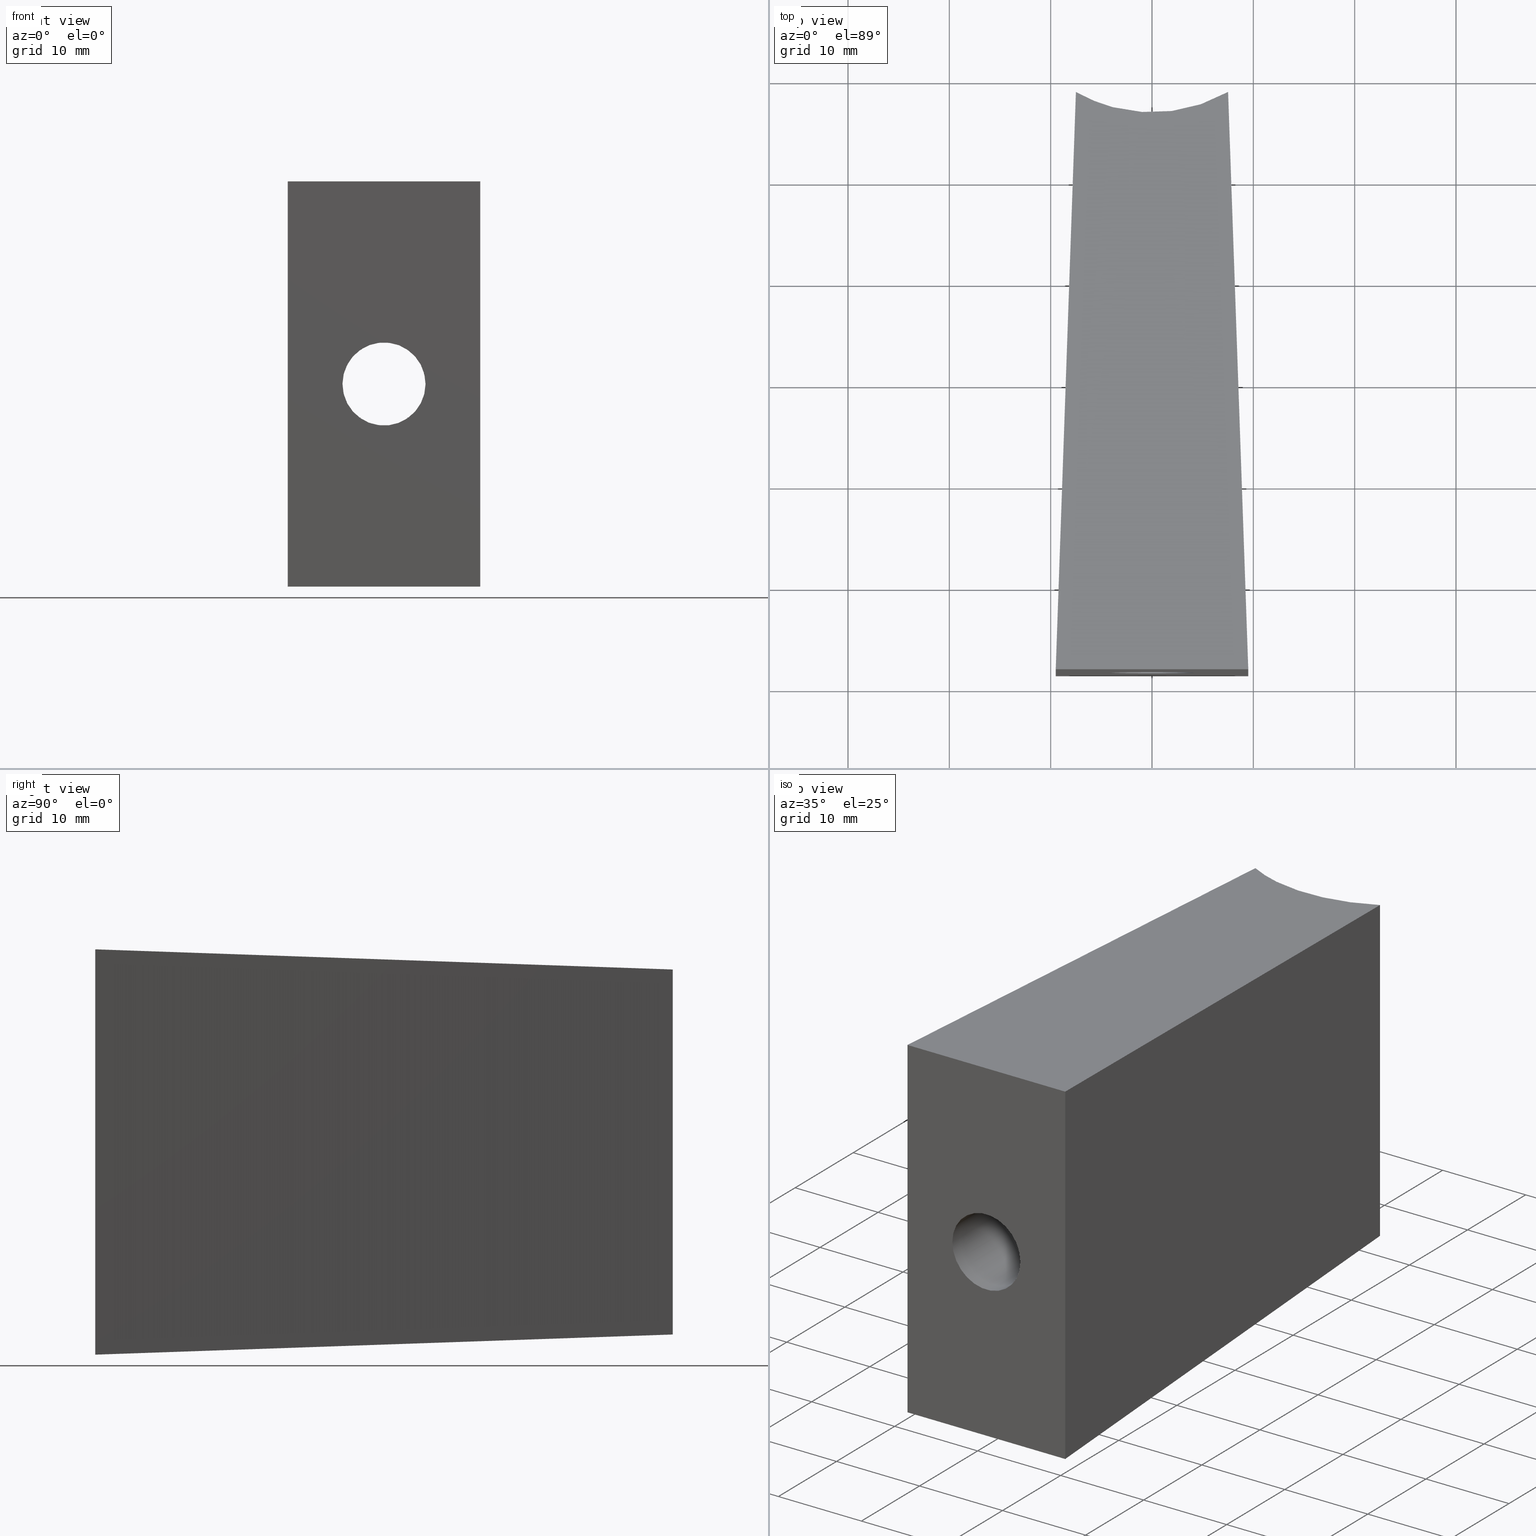
[diagram: canonical four-view strip — front | top / right | iso, engineering-drawing reading convention]
A machine part, canonical four-view strip (front | top / right | iso — engineering-drawing reading convention). The complete STEP part file that produces these views, byte-faithful:
ISO-10303-21;
HEADER;
/* Generated by software containing ST-Developer
 * from STEP Tools, Inc. (www.steptools.com) 
 */

FILE_DESCRIPTION(
/* description */ ('SUPPORTO VERTIC. MANIGLIA NERO H=57'),
/* implementation_level */ '2;1');

FILE_NAME(
/* name */ 
'Q:\\Catalogo\\2_Accessori Dierre\\Per Download Web\\CATALOGO ACCESSOR
I PER RIPARI\\PAGINA 64\\CMNAA0000003.stp',
/* time_stamp */ '2018-01-31T14:21:33+01:00',
/* author */ ('fzagni'),
/* organization */ (''),
/* preprocessor_version */ 'ST-DEVELOPER v16.1',
/* originating_system */ 'Autodesk Inventor 2016',
/* authorisation */ '');

FILE_SCHEMA (('AUTOMOTIVE_DESIGN { 1 0 10303 214 3 1 1 }'));
ENDSEC;

DATA;
#10=MECHANICAL_DESIGN_GEOMETRIC_PRESENTATION_REPRESENTATION('',(#13),#303);
#11=SHAPE_REPRESENTATION_RELATIONSHIP('SRR','None',#312,#12);
#12=ADVANCED_BREP_SHAPE_REPRESENTATION('',(#14),#302);
#13=STYLED_ITEM('',(#321),#14);
#14=MANIFOLD_SOLID_BREP('Solido1',#167);
#15=CIRCLE('',#175,4.1);
#16=PLANE('',#172);
#17=PLANE('',#173);
#18=PLANE('',#176);
#19=PLANE('',#177);
#20=PLANE('',#178);
#21=PLANE('',#179);
#22=PLANE('',#180);
#23=FACE_BOUND('',#37,.T.);
#24=FACE_BOUND('',#41,.T.);
#25=FACE_BOUND('',#47,.T.);
#26=B_SPLINE_CURVE_WITH_KNOTS('',3,(#234,#235,#236,#237,#238,#239,#240,
#241,#242,#243,#244,#245,#246,#247,#248,#249,#250,#251,#252,#253,#254,#255,
#256,#257,#258,#259,#260,#261,#262,#263,#264,#265,#266,#267),
 .UNSPECIFIED.,.T.,.F.,(4,2,2,2,2,2,2,2,2,2,2,2,2,2,2,2,4),(0.,0.155312931765757,
0.310625863531513,0.465907391265895,0.621188919000277,0.776470446734659,
0.931751974469041,1.0870649062348,1.24237783800055,1.39769076976631,1.55300370153207,
1.70828522926645,1.86356675700083,2.01884828473521,2.1741298124696,2.32944274423535,
2.48475567600111),.UNSPECIFIED.);
#27=FACE_OUTER_BOUND('',#36,.T.);
#28=FACE_OUTER_BOUND('',#38,.T.);
#29=FACE_OUTER_BOUND('',#39,.T.);
#30=FACE_OUTER_BOUND('',#40,.T.);
#31=FACE_OUTER_BOUND('',#42,.T.);
#32=FACE_OUTER_BOUND('',#43,.T.);
#33=FACE_OUTER_BOUND('',#44,.T.);
#34=FACE_OUTER_BOUND('',#45,.T.);
#35=FACE_OUTER_BOUND('',#46,.T.);
#36=EDGE_LOOP('',(#116,#117,#118,#119));
#37=EDGE_LOOP('',(#120));
#38=EDGE_LOOP('',(#121,#122,#123,#124,#125,#126));
#39=EDGE_LOOP('',(#127,#128,#129,#130));
#40=EDGE_LOOP('',(#131));
#41=EDGE_LOOP('',(#132));
#42=EDGE_LOOP('',(#133,#134,#135,#136,#137,#138));
#43=EDGE_LOOP('',(#139,#140,#141,#142));
#44=EDGE_LOOP('',(#143,#144,#145,#146));
#45=EDGE_LOOP('',(#147,#148,#149,#150));
#46=EDGE_LOOP('',(#151,#152,#153,#154));
#47=EDGE_LOOP('',(#155));
#48=LINE('',#229,#64);
#49=LINE('',#232,#65);
#50=LINE('',#270,#66);
#51=LINE('',#272,#67);
#52=LINE('',#274,#68);
#53=LINE('',#276,#69);
#54=LINE('',#277,#70);
#55=LINE('',#280,#71);
#56=LINE('',#281,#72);
#57=LINE('',#287,#73);
#58=LINE('',#289,#74);
#59=LINE('',#291,#75);
#60=LINE('',#292,#76);
#61=LINE('',#294,#77);
#62=LINE('',#296,#78);
#63=LINE('',#298,#79);
#64=VECTOR('',#187,36.0190322779408);
#65=VECTOR('',#190,36.0190322779408);
#66=VECTOR('',#193,0.0262013654225013);
#67=VECTOR('',#194,57.0694668978259);
#68=VECTOR('',#195,19.);
#69=VECTOR('',#196,57.0694668978259);
#70=VECTOR('',#197,0.0262013654225002);
#71=VECTOR('',#200,0.026201365422508);
#72=VECTOR('',#201,36.0190322779408);
#73=VECTOR('',#208,0.0262013654225046);
#74=VECTOR('',#209,57.0694668978259);
#75=VECTOR('',#210,19.);
#76=VECTOR('',#211,57.0694668978259);
#77=VECTOR('',#214,36.0190322779408);
#78=VECTOR('',#217,40.);
#79=VECTOR('',#220,40.);
#80=ELLIPSE('',#170,15.0091431644823,15.);
#81=ELLIPSE('',#171,15.0091431644823,15.);
#82=VERTEX_POINT('',#225);
#83=VERTEX_POINT('',#226);
#84=VERTEX_POINT('',#228);
#85=VERTEX_POINT('',#230);
#86=VERTEX_POINT('',#233);
#87=VERTEX_POINT('',#269);
#88=VERTEX_POINT('',#271);
#89=VERTEX_POINT('',#273);
#90=VERTEX_POINT('',#275);
#91=VERTEX_POINT('',#279);
#92=VERTEX_POINT('',#283);
#93=VERTEX_POINT('',#286);
#94=VERTEX_POINT('',#288);
#95=VERTEX_POINT('',#290);
#96=EDGE_CURVE('',#82,#83,#80,.T.);
#97=EDGE_CURVE('',#84,#82,#48,.T.);
#98=EDGE_CURVE('',#85,#84,#81,.T.);
#99=EDGE_CURVE('',#83,#85,#49,.T.);
#100=EDGE_CURVE('',#86,#86,#26,.T.);
#101=EDGE_CURVE('',#87,#84,#50,.T.);
#102=EDGE_CURVE('',#88,#87,#51,.T.);
#103=EDGE_CURVE('',#88,#89,#52,.T.);
#104=EDGE_CURVE('',#90,#89,#53,.T.);
#105=EDGE_CURVE('',#85,#90,#54,.T.);
#106=EDGE_CURVE('',#82,#91,#55,.T.);
#107=EDGE_CURVE('',#91,#87,#56,.T.);
#108=EDGE_CURVE('',#92,#92,#15,.T.);
#109=EDGE_CURVE('',#93,#83,#57,.T.);
#110=EDGE_CURVE('',#94,#93,#58,.T.);
#111=EDGE_CURVE('',#94,#95,#59,.T.);
#112=EDGE_CURVE('',#91,#95,#60,.T.);
#113=EDGE_CURVE('',#90,#93,#61,.T.);
#114=EDGE_CURVE('',#95,#88,#62,.T.);
#115=EDGE_CURVE('',#94,#89,#63,.T.);
#116=ORIENTED_EDGE('',*,*,#96,.F.);
#117=ORIENTED_EDGE('',*,*,#97,.F.);
#118=ORIENTED_EDGE('',*,*,#98,.F.);
#119=ORIENTED_EDGE('',*,*,#99,.F.);
#120=ORIENTED_EDGE('',*,*,#100,.F.);
#121=ORIENTED_EDGE('',*,*,#98,.T.);
#122=ORIENTED_EDGE('',*,*,#101,.F.);
#123=ORIENTED_EDGE('',*,*,#102,.F.);
#124=ORIENTED_EDGE('',*,*,#103,.T.);
#125=ORIENTED_EDGE('',*,*,#104,.F.);
#126=ORIENTED_EDGE('',*,*,#105,.F.);
#127=ORIENTED_EDGE('',*,*,#97,.T.);
#128=ORIENTED_EDGE('',*,*,#106,.T.);
#129=ORIENTED_EDGE('',*,*,#107,.T.);
#130=ORIENTED_EDGE('',*,*,#101,.T.);
#131=ORIENTED_EDGE('',*,*,#100,.T.);
#132=ORIENTED_EDGE('',*,*,#108,.F.);
#133=ORIENTED_EDGE('',*,*,#96,.T.);
#134=ORIENTED_EDGE('',*,*,#109,.F.);
#135=ORIENTED_EDGE('',*,*,#110,.F.);
#136=ORIENTED_EDGE('',*,*,#111,.T.);
#137=ORIENTED_EDGE('',*,*,#112,.F.);
#138=ORIENTED_EDGE('',*,*,#106,.F.);
#139=ORIENTED_EDGE('',*,*,#99,.T.);
#140=ORIENTED_EDGE('',*,*,#105,.T.);
#141=ORIENTED_EDGE('',*,*,#113,.T.);
#142=ORIENTED_EDGE('',*,*,#109,.T.);
#143=ORIENTED_EDGE('',*,*,#102,.T.);
#144=ORIENTED_EDGE('',*,*,#107,.F.);
#145=ORIENTED_EDGE('',*,*,#112,.T.);
#146=ORIENTED_EDGE('',*,*,#114,.T.);
#147=ORIENTED_EDGE('',*,*,#104,.T.);
#148=ORIENTED_EDGE('',*,*,#115,.F.);
#149=ORIENTED_EDGE('',*,*,#110,.T.);
#150=ORIENTED_EDGE('',*,*,#113,.F.);
#151=ORIENTED_EDGE('',*,*,#114,.F.);
#152=ORIENTED_EDGE('',*,*,#111,.F.);
#153=ORIENTED_EDGE('',*,*,#115,.T.);
#154=ORIENTED_EDGE('',*,*,#103,.F.);
#155=ORIENTED_EDGE('',*,*,#108,.T.);
#156=CYLINDRICAL_SURFACE('',#169,15.);
#157=CYLINDRICAL_SURFACE('',#174,4.1);
#158=ADVANCED_FACE('',(#27,#23),#156,.F.);
#159=ADVANCED_FACE('',(#28),#16,.F.);
#160=ADVANCED_FACE('',(#29),#17,.T.);
#161=ADVANCED_FACE('',(#30,#24),#157,.F.);
#162=ADVANCED_FACE('',(#31),#18,.F.);
#163=ADVANCED_FACE('',(#32),#19,.T.);
#164=ADVANCED_FACE('',(#33),#20,.F.);
#165=ADVANCED_FACE('',(#34),#21,.F.);
#166=ADVANCED_FACE('',(#35,#25),#22,.T.);
#167=CLOSED_SHELL('',(#158,#159,#160,#161,#162,#163,#164,#165,#166));
#168=AXIS2_PLACEMENT_3D('placement',#223,#181,#182);
#169=AXIS2_PLACEMENT_3D('',#224,#183,#184);
#170=AXIS2_PLACEMENT_3D('',#227,#185,#186);
#171=AXIS2_PLACEMENT_3D('',#231,#188,#189);
#172=AXIS2_PLACEMENT_3D('',#268,#191,#192);
#173=AXIS2_PLACEMENT_3D('',#278,#198,#199);
#174=AXIS2_PLACEMENT_3D('',#282,#202,#203);
#175=AXIS2_PLACEMENT_3D('',#284,#204,#205);
#176=AXIS2_PLACEMENT_3D('',#285,#206,#207);
#177=AXIS2_PLACEMENT_3D('',#293,#212,#213);
#178=AXIS2_PLACEMENT_3D('',#295,#215,#216);
#179=AXIS2_PLACEMENT_3D('',#297,#218,#219);
#180=AXIS2_PLACEMENT_3D('',#299,#221,#222);
#181=DIRECTION('axis',(0.,0.,1.));
#182=DIRECTION('refdir',(1.,0.,0.));
#183=DIRECTION('center_axis',(0.,0.,1.));
#184=DIRECTION('ref_axis',(-0.500599911076305,-0.865678767806162,0.));
#185=DIRECTION('center_axis',(0.,-0.0348994967025006,-0.999390827019096));
#186=DIRECTION('ref_axis',(7.10109892323697E-15,-0.999390827019096,0.0348994967025006));
#187=DIRECTION('',(0.,0.,1.));
#188=DIRECTION('center_axis',(0.,-0.0348994967025011,0.999390827019096));
#189=DIRECTION('ref_axis',(1.33885302615197E-14,-0.999390827019096,-0.0348994967025011));
#190=DIRECTION('',(0.,0.,-1.));
#191=DIRECTION('center_axis',(0.,-0.0348994967025011,0.999390827019096));
#192=DIRECTION('ref_axis',(0.,0.999390827019096,0.0348994967025011));
#193=DIRECTION('',(-1.,0.,0.));
#194=DIRECTION('',(-0.0348782627423745,0.998782765958718,0.0348782627423747));
#195=DIRECTION('',(-1.,0.,0.));
#196=DIRECTION('',(-0.0348782627423745,-0.998782765958718,-0.0348782627423747));
#197=DIRECTION('',(-1.,0.,0.));
#198=DIRECTION('center_axis',(0.,1.,0.));
#199=DIRECTION('ref_axis',(-1.,0.,0.));
#200=DIRECTION('',(1.,0.,0.));
#201=DIRECTION('',(0.,0.,-1.));
#202=DIRECTION('center_axis',(0.,-1.,0.));
#203=DIRECTION('ref_axis',(1.,0.,0.));
#204=DIRECTION('center_axis',(0.,1.,0.));
#205=DIRECTION('ref_axis',(1.,0.,0.));
#206=DIRECTION('center_axis',(0.,-0.0348994967025006,-0.999390827019096));
#207=DIRECTION('ref_axis',(0.,-0.999390827019096,0.0348994967025007));
#208=DIRECTION('',(1.,0.,0.));
#209=DIRECTION('',(0.0348782627423745,0.998782765958718,-0.0348782627423742));
#210=DIRECTION('',(1.,0.,0.));
#211=DIRECTION('',(0.0348782627423745,-0.998782765958718,0.0348782627423742));
#212=DIRECTION('center_axis',(0.,1.,0.));
#213=DIRECTION('ref_axis',(-1.,0.,0.));
#214=DIRECTION('',(0.,0.,1.));
#215=DIRECTION('center_axis',(-0.999390827019096,-0.0348994967025008,0.));
#216=DIRECTION('ref_axis',(-0.0348994967025009,0.999390827019096,0.));
#217=DIRECTION('',(0.,0.,-1.));
#218=DIRECTION('center_axis',(0.999390827019096,-0.0348994967025009,0.));
#219=DIRECTION('ref_axis',(-0.0348994967025009,-0.999390827019096,0.));
#220=DIRECTION('',(0.,0.,-1.));
#221=DIRECTION('center_axis',(0.,-1.,0.));
#222=DIRECTION('ref_axis',(1.,0.,0.));
#223=CARTESIAN_POINT('',(0.,0.,0.));
#224=CARTESIAN_POINT('Origin',(0.,41.5,0.));
#225=CARTESIAN_POINT('',(7.48331477354788,28.5,18.0095161389704));
#226=CARTESIAN_POINT('',(-7.48331477354788,28.5,18.0095161389704));
#227=CARTESIAN_POINT('Origin',(0.,41.5,17.5555461355777));
#228=CARTESIAN_POINT('',(7.48331477354789,28.5,-18.0095161389704));
#229=CARTESIAN_POINT('',(7.48331477354788,28.5,0.));
#230=CARTESIAN_POINT('',(-7.48331477354789,28.5,-18.0095161389704));
#231=CARTESIAN_POINT('Origin',(0.,41.5,-17.5555461355777));
#232=CARTESIAN_POINT('',(-7.48331477354788,28.5,0.));
#233=CARTESIAN_POINT('',(4.1,27.0712093368848,0.));
#234=CARTESIAN_POINT('Ctrl Pts',(4.1,27.0712093368848,0.));
#235=CARTESIAN_POINT('Ctrl Pts',(4.1,27.0712093368848,-0.517709772552522));
#236=CARTESIAN_POINT('Ctrl Pts',(3.99599394330733,27.0404371714704,-1.06800699058504));
#237=CARTESIAN_POINT('Ctrl Pts',(3.57678481590098,26.9310764424968,-2.07731045986194));
#238=CARTESIAN_POINT('Ctrl Pts',(3.26171334312637,26.8542569852714,-2.53656226260332));
#239=CARTESIAN_POINT('Ctrl Pts',(2.53663557480928,26.711423762681,-3.26164003092041));
#240=CARTESIAN_POINT('Ctrl Pts',(2.07735356602485,26.6358767058198,-3.57676849745034));
#241=CARTESIAN_POINT('Ctrl Pts',(1.06794181394767,26.5294602833011,-3.99601942858612));
#242=CARTESIAN_POINT('Ctrl Pts',(0.517605092447941,26.5,-4.1));
#243=CARTESIAN_POINT('Ctrl Pts',(-0.51760509244794,26.5,-4.1));
#244=CARTESIAN_POINT('Ctrl Pts',(-1.06794181394767,26.5294602833011,-3.99601942858612));
#245=CARTESIAN_POINT('Ctrl Pts',(-2.07735356602485,26.6358767058198,-3.57676849745034));
#246=CARTESIAN_POINT('Ctrl Pts',(-2.53663557480928,26.711423762681,-3.26164003092041));
#247=CARTESIAN_POINT('Ctrl Pts',(-3.26171334312637,26.8542569852714,-2.53656226260332));
#248=CARTESIAN_POINT('Ctrl Pts',(-3.57678481590098,26.9310764424968,-2.07731045986194));
#249=CARTESIAN_POINT('Ctrl Pts',(-3.99599394330733,27.0404371714704,-1.06800699058504));
#250=CARTESIAN_POINT('Ctrl Pts',(-4.1,27.0712093368848,-0.517709772552521));
#251=CARTESIAN_POINT('Ctrl Pts',(-4.1,27.0712093368848,0.517709772552521));
#252=CARTESIAN_POINT('Ctrl Pts',(-3.99599394330733,27.0404371714704,1.06800699058503));
#253=CARTESIAN_POINT('Ctrl Pts',(-3.57678481590098,26.9310764424968,2.07731045986194));
#254=CARTESIAN_POINT('Ctrl Pts',(-3.26171334312637,26.8542569852714,2.53656226260332));
#255=CARTESIAN_POINT('Ctrl Pts',(-2.53663557480928,26.711423762681,3.26164003092041));
#256=CARTESIAN_POINT('Ctrl Pts',(-2.07735356602485,26.6358767058198,3.57676849745034));
#257=CARTESIAN_POINT('Ctrl Pts',(-1.06794181394767,26.5294602833011,3.99601942858612));
#258=CARTESIAN_POINT('Ctrl Pts',(-0.517605092447941,26.5,4.1));
#259=CARTESIAN_POINT('Ctrl Pts',(0.51760509244794,26.5,4.1));
#260=CARTESIAN_POINT('Ctrl Pts',(1.06794181394767,26.5294602833011,3.99601942858612));
#261=CARTESIAN_POINT('Ctrl Pts',(2.07735356602485,26.6358767058198,3.57676849745034));
#262=CARTESIAN_POINT('Ctrl Pts',(2.53663557480928,26.711423762681,3.26164003092041));
#263=CARTESIAN_POINT('Ctrl Pts',(3.26171334312637,26.8542569852714,2.53656226260332));
#264=CARTESIAN_POINT('Ctrl Pts',(3.57678481590098,26.9310764424968,2.07731045986194));
#265=CARTESIAN_POINT('Ctrl Pts',(3.99599394330733,27.0404371714704,1.06800699058504));
#266=CARTESIAN_POINT('Ctrl Pts',(4.1,27.0712093368848,0.517709772552523));
#267=CARTESIAN_POINT('Ctrl Pts',(4.1,27.0712093368848,1.38777878078145E-16));
#268=CARTESIAN_POINT('Origin',(10.,-28.5,-20.));
#269=CARTESIAN_POINT('',(7.50951613897039,28.5,-18.0095161389704));
#270=CARTESIAN_POINT('',(9.75,28.5,-18.0095161389704));
#271=CARTESIAN_POINT('',(9.5,-28.5,-20.));
#272=CARTESIAN_POINT('',(9.47597425906446,-27.8119927972601,-19.9759742590645));
#273=CARTESIAN_POINT('',(-9.5,-28.5,-20.));
#274=CARTESIAN_POINT('',(9.5,-28.5,-20.));
#275=CARTESIAN_POINT('',(-7.50951613897039,28.5,-18.0095161389704));
#276=CARTESIAN_POINT('',(-8.46977810148308,1.00169522353662,-18.9697781014831));
#277=CARTESIAN_POINT('',(9.75,28.5,-18.0095161389704));
#278=CARTESIAN_POINT('Origin',(9.5,28.5,0.));
#279=CARTESIAN_POINT('',(7.50951613897039,28.5,18.0095161389704));
#280=CARTESIAN_POINT('',(9.75,28.5,18.0095161389704));
#281=CARTESIAN_POINT('',(7.50951613897039,28.5,10.));
#282=CARTESIAN_POINT('Origin',(0.,43.6803297304744,0.));
#283=CARTESIAN_POINT('',(4.1,-28.5,0.));
#284=CARTESIAN_POINT('Origin',(0.,-28.5,0.));
#285=CARTESIAN_POINT('Origin',(10.,28.5,18.0095161389704));
#286=CARTESIAN_POINT('',(-7.50951613897039,28.5,18.0095161389704));
#287=CARTESIAN_POINT('',(9.75,28.5,18.0095161389704));
#288=CARTESIAN_POINT('',(-9.5,-28.5,20.));
#289=CARTESIAN_POINT('',(-7.5000767402595,28.7703090123235,18.0000767402595));
#290=CARTESIAN_POINT('',(9.5,-28.5,20.));
#291=CARTESIAN_POINT('',(9.5,-28.5,20.));
#292=CARTESIAN_POINT('',(8.50627289784087,-0.0433790084732967,19.0062728978409));
#293=CARTESIAN_POINT('Origin',(9.5,28.5,0.));
#294=CARTESIAN_POINT('',(-7.50951613897039,28.5,10.));
#295=CARTESIAN_POINT('Origin',(9.5,-28.5,20.));
#296=CARTESIAN_POINT('',(9.5,-28.5,0.));
#297=CARTESIAN_POINT('Origin',(-7.50951613897039,28.5,20.));
#298=CARTESIAN_POINT('',(-9.5,-28.5,0.));
#299=CARTESIAN_POINT('Origin',(-9.5,-28.5,0.));
#300=UNCERTAINTY_MEASURE_WITH_UNIT(LENGTH_MEASURE(0.01),#304,
'DISTANCE_ACCURACY_VALUE',
'Maximum model space distance between geometric entities at asserted c
onnectivities');
#301=UNCERTAINTY_MEASURE_WITH_UNIT(LENGTH_MEASURE(1.E-6),#304,
'DISTANCE_ACCURACY_VALUE',
'Maximum model space distance between geometric entities at asserted c
onnectivities');
#302=(
GEOMETRIC_REPRESENTATION_CONTEXT(3)
GLOBAL_UNCERTAINTY_ASSIGNED_CONTEXT((#300))
GLOBAL_UNIT_ASSIGNED_CONTEXT((#304,#307,#305))
REPRESENTATION_CONTEXT('','3D')
);
#303=(
GEOMETRIC_REPRESENTATION_CONTEXT(3)
GLOBAL_UNCERTAINTY_ASSIGNED_CONTEXT((#301))
GLOBAL_UNIT_ASSIGNED_CONTEXT((#304,#307,#305))
REPRESENTATION_CONTEXT('','3D')
);
#304=(
LENGTH_UNIT()
NAMED_UNIT(*)
SI_UNIT(.MILLI.,.METRE.)
);
#305=(
NAMED_UNIT(*)
SI_UNIT($,.STERADIAN.)
SOLID_ANGLE_UNIT()
);
#306=DIMENSIONAL_EXPONENTS(0.,0.,0.,0.,0.,0.,0.);
#307=(
CONVERSION_BASED_UNIT('degree',#309)
NAMED_UNIT(#306)
PLANE_ANGLE_UNIT()
);
#308=(
NAMED_UNIT(*)
PLANE_ANGLE_UNIT()
SI_UNIT($,.RADIAN.)
);
#309=PLANE_ANGLE_MEASURE_WITH_UNIT(PLANE_ANGLE_MEASURE(0.01745329252),#308);
#310=SHAPE_DEFINITION_REPRESENTATION(#311,#312);
#311=PRODUCT_DEFINITION_SHAPE('',$,#314);
#312=SHAPE_REPRESENTATION('',(#168),#302);
#313=PRODUCT_DEFINITION_CONTEXT('part definition',#318,'design');
#314=PRODUCT_DEFINITION('15.329.00','15.329.00',#315,#313);
#315=PRODUCT_DEFINITION_FORMATION('','A',#320);
#316=PRODUCT_RELATED_PRODUCT_CATEGORY('15.329.00','15.329.00',(#320));
#317=APPLICATION_PROTOCOL_DEFINITION('international standard',
'automotive_design',2009,#318);
#318=APPLICATION_CONTEXT(
'Core Data for Automotive Mechanical Design Process');
#319=PRODUCT_CONTEXT('part definition',#318,'mechanical');
#320=PRODUCT('15.329.00','15.329.00',$,(#319));
#321=PRESENTATION_STYLE_ASSIGNMENT((#322));
#322=SURFACE_STYLE_USAGE(.BOTH.,#323);
#323=SURFACE_SIDE_STYLE('',(#324));
#324=SURFACE_STYLE_FILL_AREA(#325);
#325=FILL_AREA_STYLE('',(#326));
#326=FILL_AREA_STYLE_COLOUR('',#327);
#327=COLOUR_RGB('',0.16078431372549,0.16078431372549,0.16078431372549);
ENDSEC;
END-ISO-10303-21;
